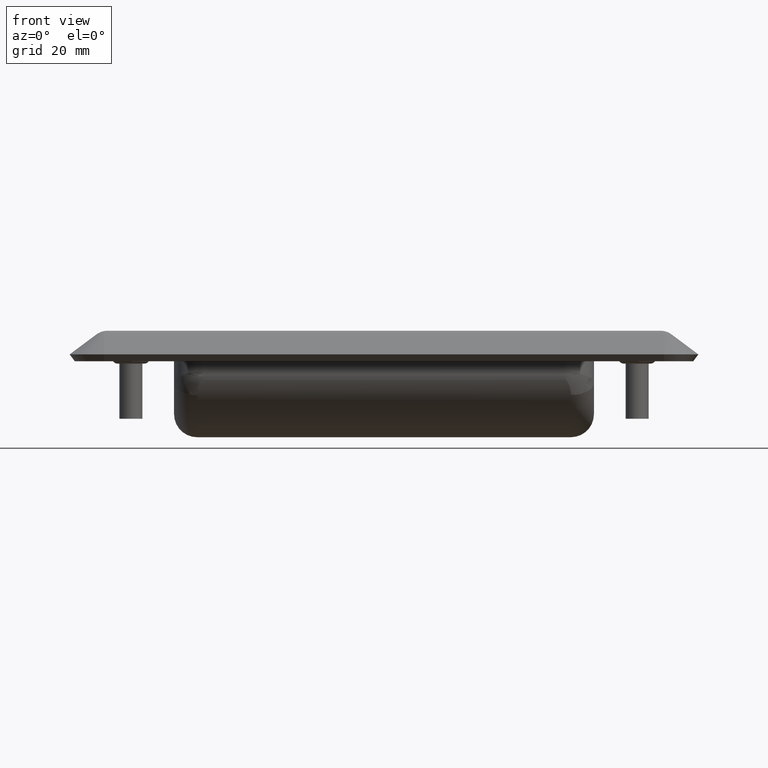
[diagram: clean part render]
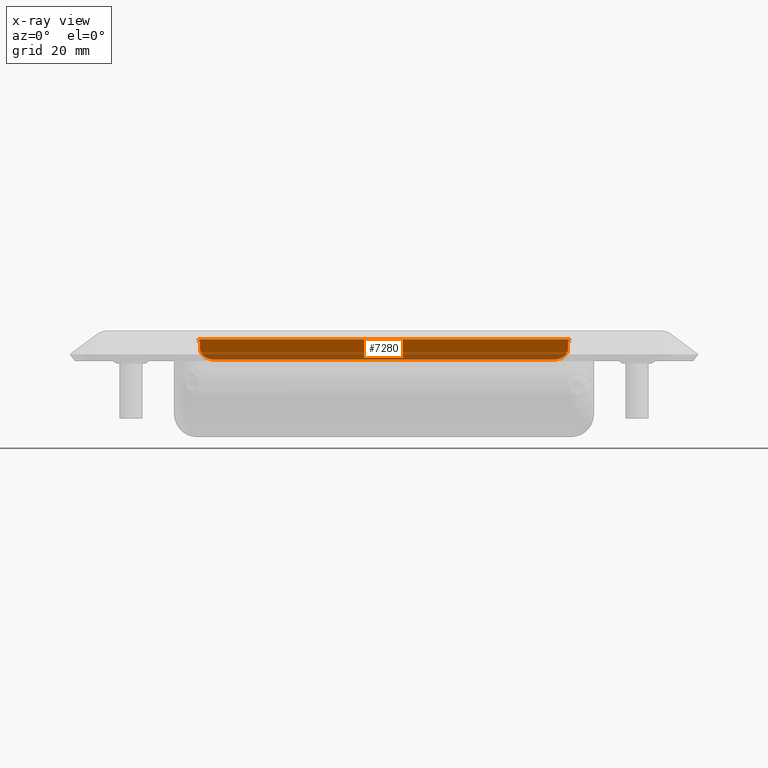
[diagram: x-ray — body ghosted, one internal face saturated and labeled with its STEP entity id]
A machine part, front view, then the same camera in x-ray: the body is ghosted and one INTERNAL B-rep face — a face not visible from any outside direction — is saturated and labeled: STEP entity #7280.
In plain terms, the highlighted planar face has unit normal (-0, -0.7341, -0.679).
Its self-contained STEP definition (entity closure, byte-faithful):
#138=ELLIPSE('',#7783,2.20899449607977,1.5);
#139=ELLIPSE('',#7788,2.20899449607977,1.5);
#221=LINE('',#10655,#755);
#227=LINE('',#10673,#761);
#229=LINE('',#10694,#763);
#247=LINE('',#10749,#781);
#755=VECTOR('',#8512,59.);
#761=VECTOR('',#8530,1.04984039812435);
#763=VECTOR('',#8542,1.04984039812435);
#781=VECTOR('',#8590,64.5201935771144);
#1602=PLANE('',#7799);
#1784=FACE_OUTER_BOUND('',#2273,.T.);
#2273=EDGE_LOOP('',(#4926,#4927,#4928,#4929,#4930,#4931,#4932,#4933));
#2773=CIRCLE('',#7771,2.5);
#2776=CIRCLE('',#7777,2.5);
#3028=VERTEX_POINT('',#10642);
#3029=VERTEX_POINT('',#10643);
#3033=VERTEX_POINT('',#10653);
#3037=VERTEX_POINT('',#10665);
#3039=VERTEX_POINT('',#10671);
#3040=VERTEX_POINT('',#10675);
#3043=VERTEX_POINT('',#10690);
#3046=VERTEX_POINT('',#10703);
#3702=EDGE_CURVE('',#3028,#3029,#2773,.T.);
#3708=EDGE_CURVE('',#3033,#3028,#221,.T.);
#3714=EDGE_CURVE('',#3037,#3033,#2776,.T.);
#3717=EDGE_CURVE('',#3039,#3037,#227,.T.);
#3722=EDGE_CURVE('',#3043,#3040,#138,.T.);
#3723=EDGE_CURVE('',#3029,#3043,#229,.T.);
#3728=EDGE_CURVE('',#3039,#3046,#139,.F.);
#3747=EDGE_CURVE('',#3040,#3046,#247,.T.);
#4926=ORIENTED_EDGE('',*,*,#3702,.F.);
#4927=ORIENTED_EDGE('',*,*,#3708,.F.);
#4928=ORIENTED_EDGE('',*,*,#3714,.F.);
#4929=ORIENTED_EDGE('',*,*,#3717,.F.);
#4930=ORIENTED_EDGE('',*,*,#3728,.T.);
#4931=ORIENTED_EDGE('',*,*,#3747,.F.);
#4932=ORIENTED_EDGE('',*,*,#3722,.F.);
#4933=ORIENTED_EDGE('',*,*,#3723,.F.);
#7280=ADVANCED_FACE('',(#1784),#1602,.T.);
#7771=AXIS2_PLACEMENT_3D('',#10644,#8502,#8503);
#7777=AXIS2_PLACEMENT_3D('',#10667,#8523,#8524);
#7783=AXIS2_PLACEMENT_3D('',#10692,#8538,#8539);
#7788=AXIS2_PLACEMENT_3D('',#10704,#8552,#8553);
#7799=AXIS2_PLACEMENT_3D('',#10748,#8588,#8589);
#8502=DIRECTION('center_axis',(0.,-0.734099439586406,0.679041981617429));
#8503=DIRECTION('ref_axis',(0.707106781186548,-0.480155189912035,-0.519086691796792));
#8512=DIRECTION('',(1.,0.,0.));
#8523=DIRECTION('center_axis',(0.,-0.734099439586406,0.679041981617429));
#8524=DIRECTION('ref_axis',(-0.707106781186548,-0.480155189912035,-0.519086691796792));
#8530=DIRECTION('',(0.,-0.679041981617429,-0.734099439586406));
#8538=DIRECTION('center_axis',(0.,0.734099439586406,-0.679041981617429));
#8539=DIRECTION('ref_axis',(-6.28240035565635E-17,0.679041981617429,0.734099439586406));
#8542=DIRECTION('',(0.,0.679041981617429,0.734099439586406));
#8552=DIRECTION('center_axis',(0.,0.734099439586406,-0.679041981617429));
#8553=DIRECTION('ref_axis',(6.28240035565635E-17,0.679041981617429,0.734099439586406));
#8588=DIRECTION('center_axis',(0.,0.734099439586406,-0.679041981617429));
#8589=DIRECTION('ref_axis',(0.,0.679041981617429,0.734099439586406));
#8590=DIRECTION('',(-1.,-1.78084907129181E-16,-1.92524223923438E-16));
#10642=CARTESIAN_POINT('',(29.5,14.9511491593796,-5.01856297242613));
#10643=CARTESIAN_POINT('',(32.,16.6487541134232,-3.18331437346012));
#10644=CARTESIAN_POINT('Origin',(29.5,16.6487541134232,-3.1833143734601));
#10653=CARTESIAN_POINT('',(-29.5,14.9511491593796,-5.01856297242613));
#10655=CARTESIAN_POINT('',(0.,14.9511491593796,-5.01856297242613));
#10665=CARTESIAN_POINT('',(-32.,16.6487541134232,-3.18331437346012));
#10667=CARTESIAN_POINT('Origin',(-29.5,16.6487541134232,-3.1833143734601));
#10671=CARTESIAN_POINT('',(-32.,17.3616398177476,-2.41262712554188));
#10673=CARTESIAN_POINT('',(-32.,14.9511491593796,-5.01856297242613));
#10675=CARTESIAN_POINT('',(32.2600967885572,18.2058199088738,-1.5));
#10690=CARTESIAN_POINT('',(32.,17.3616398177476,-2.41262712554188));
#10692=CARTESIAN_POINT('Origin',(33.5,17.3616398177476,-2.41262712554188));
#10694=CARTESIAN_POINT('',(32.,14.9511491593796,-5.01856297242613));
#10703=CARTESIAN_POINT('',(-32.2600967885572,18.2058199088738,-1.5));
#10704=CARTESIAN_POINT('Origin',(-33.5,17.3616398177476,-2.41262712554188));
#10748=CARTESIAN_POINT('Origin',(0.,14.9511491593796,-5.01856297242613));
#10749=CARTESIAN_POINT('',(-20.,18.2058199088738,-1.5));